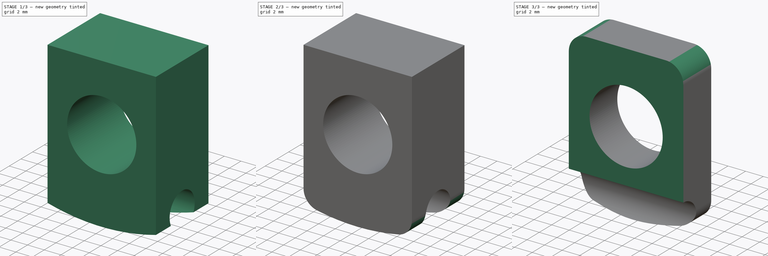
[diagram: build sequence overview — one tinted view per stage of 3, left to right]
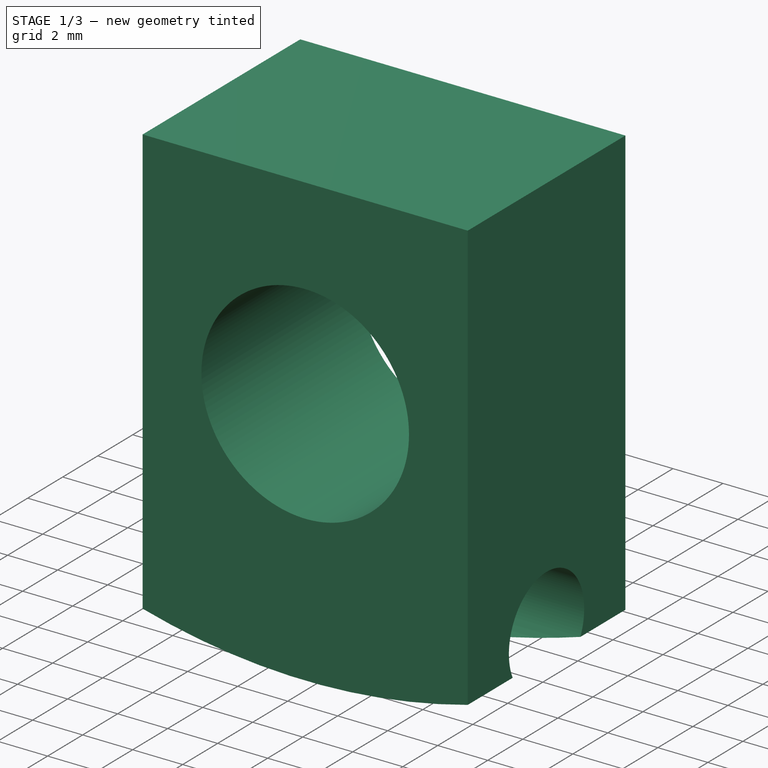
[diagram: stage 1 of 3 — iso view after this stage's code; geometry added in this stage tinted green]
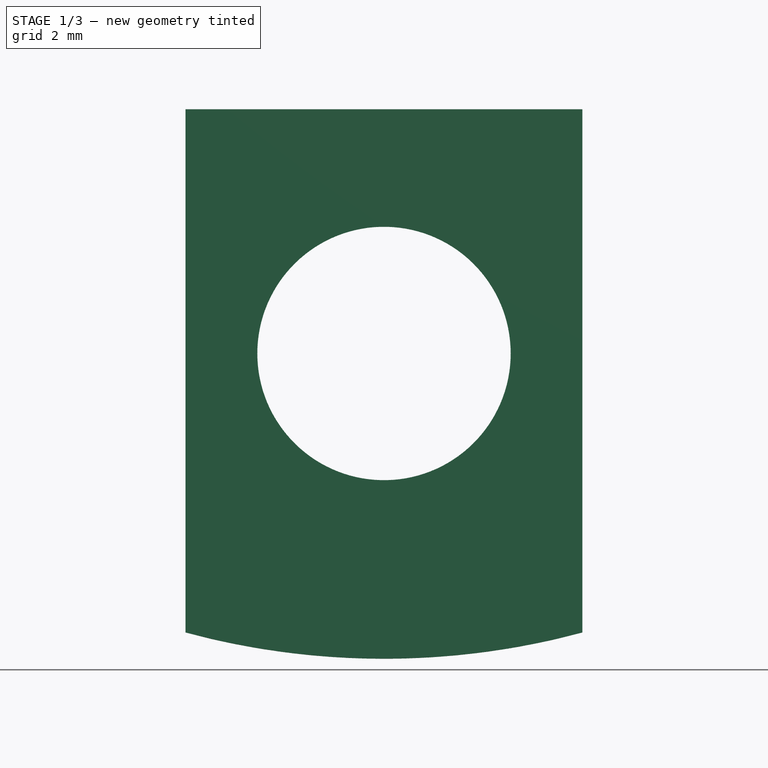
[diagram: stage 1 of 3 — front view after this stage's code; geometry added in this stage tinted green]
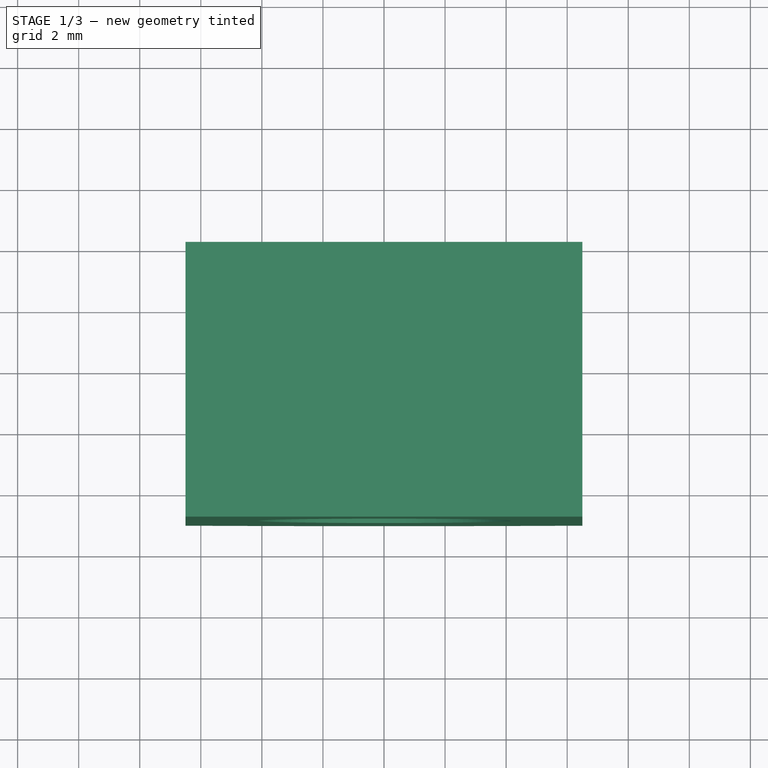
[diagram: stage 1 of 3 — top view after this stage's code; geometry added in this stage tinted green]
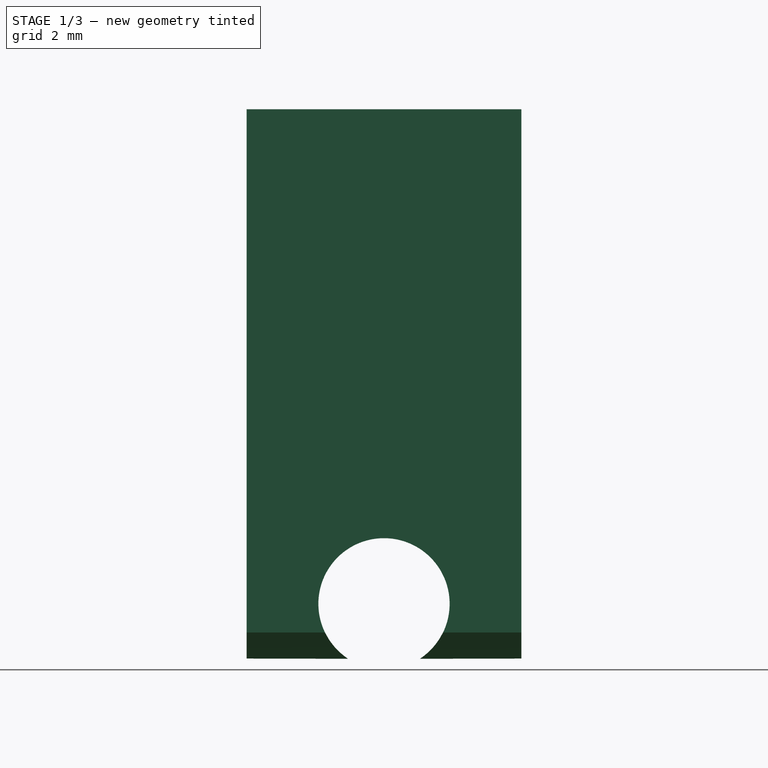
[diagram: stage 1 of 3 — right view after this stage's code; geometry added in this stage tinted green]
FCSTD DOCUMENT  (FreeCAD 0.20R24992 (Git))
Label: joint-2
License: All rights reserved
LicenseURL: http://en.wikipedia.org/wiki/All_rights_reserved
objects: Sketcher::SketchObject×3, PartDesign::Pocket×2, PartDesign::Fillet×2, PartDesign::Pad×1, PartDesign::Body×1
note: 14 computed .brp shape members not serialized (recipe doc carries the construction recipe); baked Part::Feature solids carry a one-line shape summary decoded from their .brp

FEATURE [Sketcher::SketchObject] Sketch
  FullyConstrained = true
  MapMode = 5
  Placement = pos=(0,0,0) rot=(1,0,0;1.5708rad)
  Support = -> [XZ_Plane]
  sketch-geometry (5):
    g0: Circle CenterX=0 CenterY=10 CenterZ=0 NormalX=0 NormalY=0 NormalZ=1 AngleXU=0 Radius=4.15
    g1: LineSegment StartX=-6.5 StartY=18 StartZ=0 EndX=-6.5 EndY=0.859785 EndZ=0
    g2: LineSegment StartX=6.5 StartY=18 StartZ=0 EndX=6.5 EndY=0.859785 EndZ=0
    g3: ArcOfCircle CenterX=0 CenterY=25 CenterZ=0 NormalX=0 NormalY=0 NormalZ=1 AngleXU=0 Radius=25 StartAngle=4.44937 EndAngle=4.97541
    g4: LineSegment StartX=-6.5 StartY=18 StartZ=0 EndX=6.5 EndY=18 EndZ=0
  constraints (16):
    c: PointOnObject(g0,g-2)
    c: Radius(g0) = 4.15
    c: Coincident(g3,g2)
    c: Coincident(g3,g1)
    c: PointOnObject(g-1,g3)
    c: DistanceY(g-1,g0) = 10
    c: Vertical(g2)
    c: Vertical(g1)
    c: Equal(g1,g2)
    c: Radius(g3) = 25
    c: Coincident(g4,g1)
    c: Coincident(g4,g2)
    c: Horizontal(g4)
    c: DistanceY(g0,g2) = 8
    c: DistanceX(g1,g2) = 13
    c: PointOnObject(g3,g-2)
FEATURE [PartDesign::Pad] Pad
  Direction = (0,-1,-2e-16)
  Length = 9
  Length2 = 100
  Placement = pos=(0,0,0) rot=(1,0,0;1.5708rad)
  Profile = -> Sketch
  Type = 0
FEATURE [Sketcher::SketchObject] Sketch001
  FullyConstrained = true
  MapMode = 5
  Placement = pos=(0,0,0) rot=(0.57735,0.57735,0.57735;2.0944rad)
  Support = -> [YZ_Plane]
  sketch-geometry (4):
    g0: ArcOfCircle CenterX=-4.5 CenterY=1.8 CenterZ=0 NormalX=0 NormalY=0 NormalZ=1 AngleXU=0 Radius=2.15 StartAngle=5.19615 EndAngle=10.5118
    g1: LineSegment StartX=-5.5 StartY=-0.103287 StartZ=0 EndX=-5.5 EndY=-1 EndZ=0
    g2: LineSegment StartX=-3.5 StartY=-0.103287 StartZ=0 EndX=-3.5 EndY=-1 EndZ=0
    g3: LineSegment StartX=-5.5 StartY=-1 StartZ=0 EndX=-3.5 EndY=-1 EndZ=0
  constraints (13):
    c: DistanceX(g0,g-1) = 4.5
    c: DistanceY(g-1,g0) = 1.8
    c: Vertical(g1)
    c: Vertical(g2)
    c: Radius(g0) = 2.15
    c: DistanceX(g1,g0) = 1
    c: Coincident(g3,g1)
    c: Coincident(g3,g2)
    c: Horizontal(g3)
    c: DistanceX(g0,g2) = 1
    c: DistanceY(g2,g-1) = 1
    c: Coincident(g0,g1)
    c: Coincident(g0,g2)
FEATURE [PartDesign::Pocket] Pocket
  BaseFeature = -> Pad
  Length = 5
  Length2 = 100
  Midplane = true
  Placement = pos=(0,0,0) rot=(1,0,0;1.5708rad)
  Profile = -> Sketch001
  Type = 1
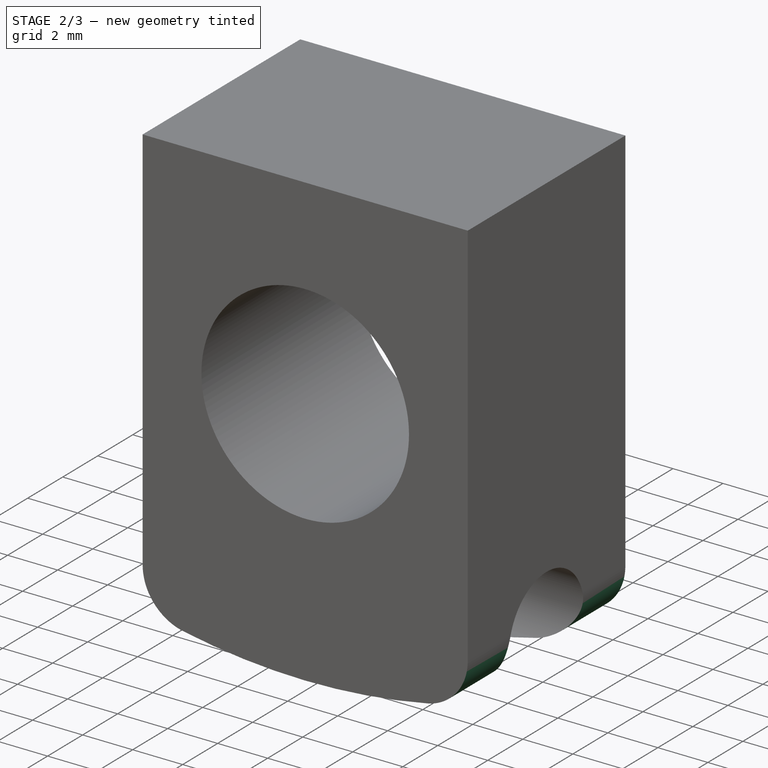
[diagram: stage 2 of 3 — iso view after this stage's code; geometry added in this stage tinted green]
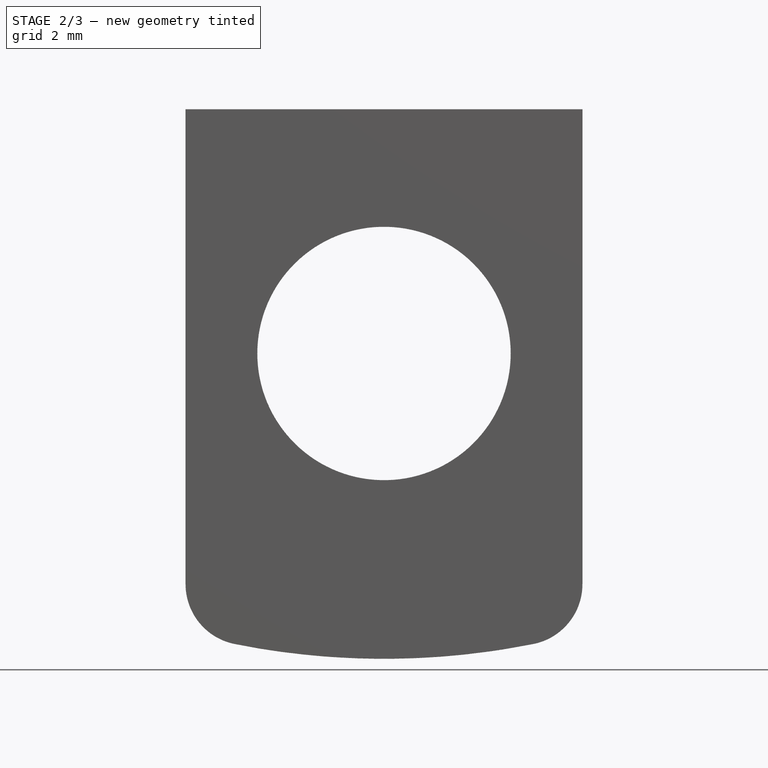
[diagram: stage 2 of 3 — front view after this stage's code; geometry added in this stage tinted green]
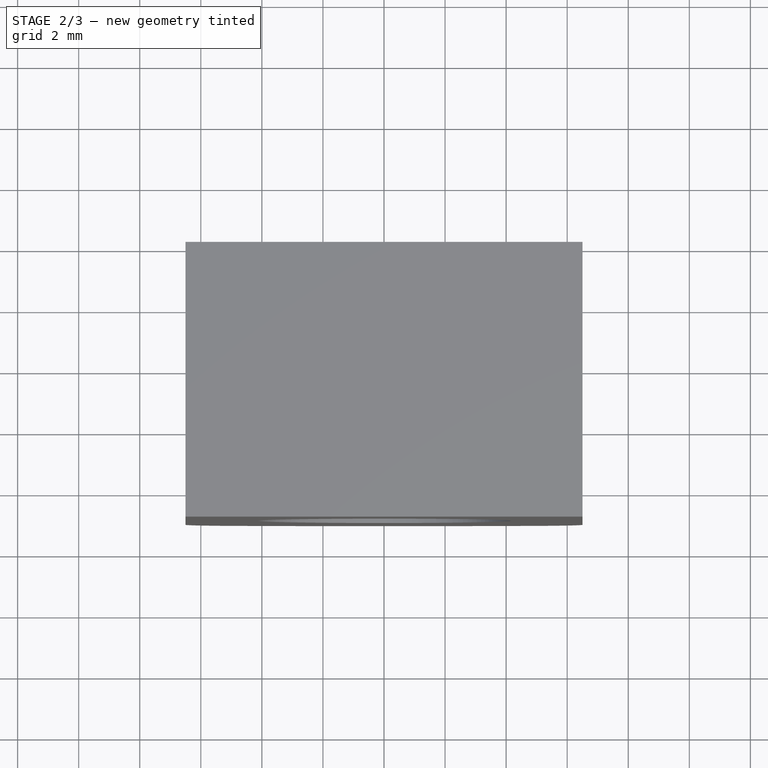
[diagram: stage 2 of 3 — top view after this stage's code; geometry added in this stage tinted green]
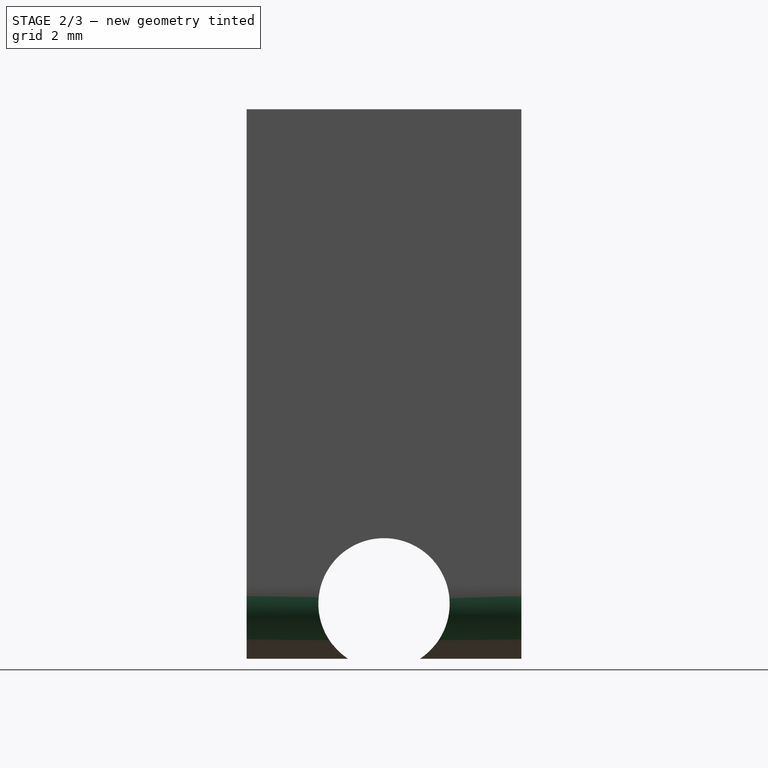
[diagram: stage 2 of 3 — right view after this stage's code; geometry added in this stage tinted green]
FEATURE [PartDesign::Fillet] Fillet
  Base = -> Pocket [Edge4,Edge2,Edge15,Edge11]
  BaseFeature = -> Pocket
  Placement = pos=(0,0,0) rot=(1,0,0;1.5708rad)
  Radius = 2
  SupportTransform = false
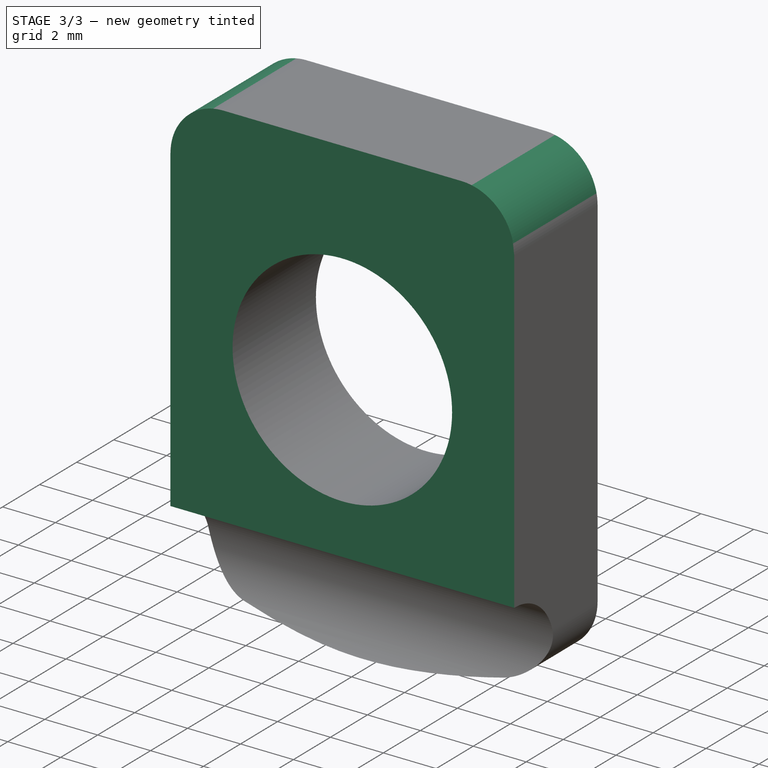
[diagram: stage 3 of 3 — iso view after this stage's code; geometry added in this stage tinted green]
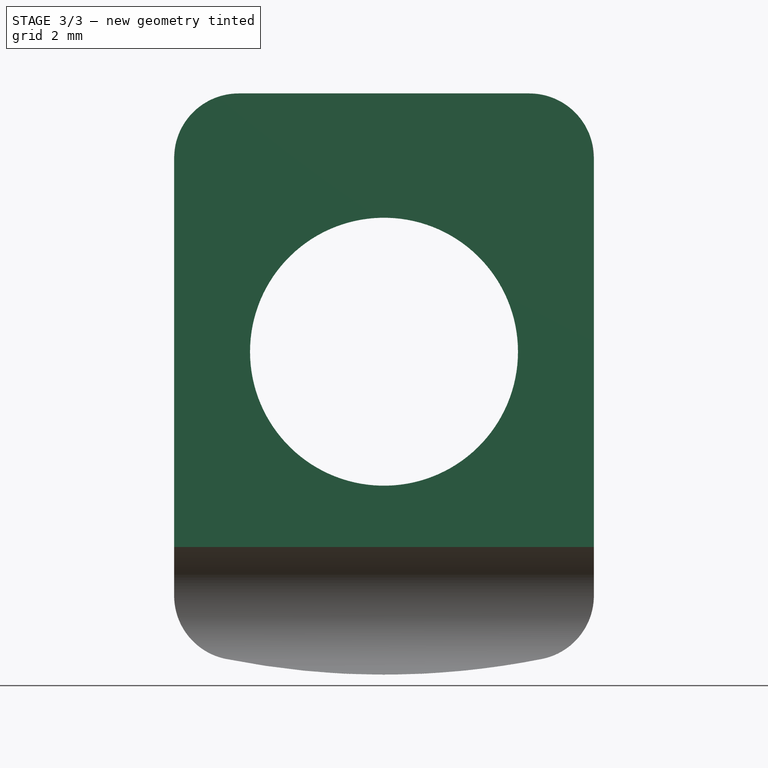
[diagram: stage 3 of 3 — front view after this stage's code; geometry added in this stage tinted green]
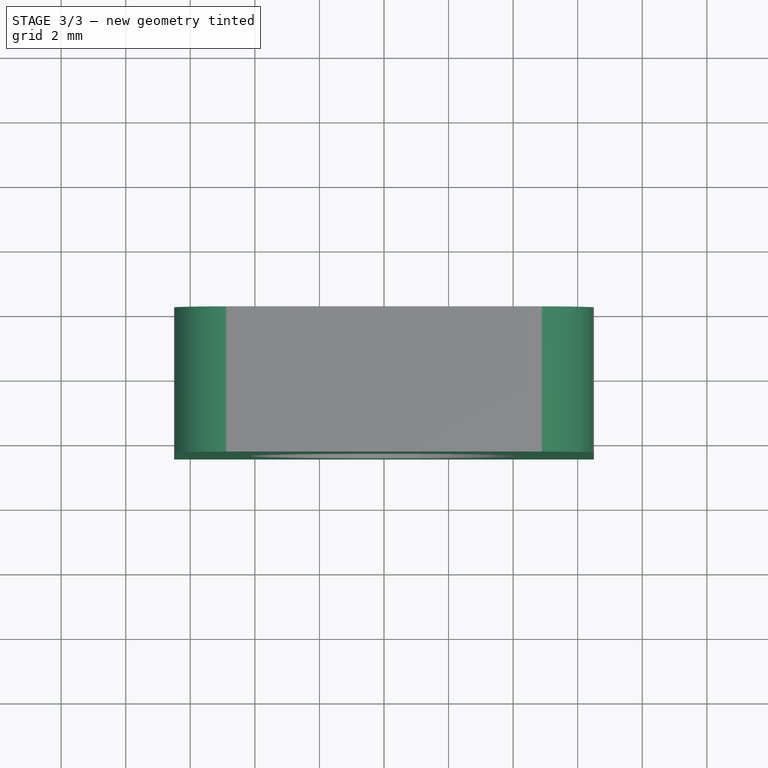
[diagram: stage 3 of 3 — top view after this stage's code; geometry added in this stage tinted green]
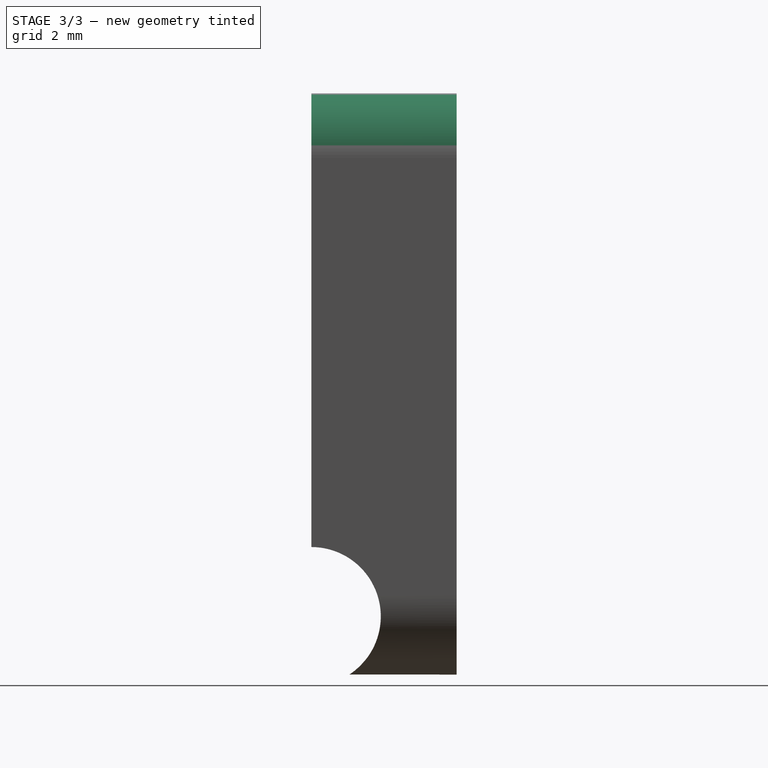
[diagram: stage 3 of 3 — right view after this stage's code; geometry added in this stage tinted green]
FEATURE [PartDesign::Fillet] Fillet001
  Base = -> Fillet [Edge15,Edge3]
  BaseFeature = -> Fillet
  Placement = pos=(0,0,0) rot=(1,0,0;1.5708rad)
  Radius = 2
  SupportTransform = false
FEATURE [Sketcher::SketchObject] Sketch002
  FullyConstrained = true
  MapMode = 5
  Placement = pos=(6.5,0,0) rot=(0.707107,0,0.707107;3.14159rad)
  Support = -> [Fillet001]
  sketch-geometry (4):
    g0: LineSegment StartX=18 StartY=9.5 StartZ=0 EndX=0 EndY=9.5 EndZ=0
    g1: LineSegment StartX=0 StartY=9.5 StartZ=0 EndX=0 EndY=4.5 EndZ=0
    g2: LineSegment StartX=0 StartY=4.5 StartZ=0 EndX=18 EndY=4.5 EndZ=0
    g3: LineSegment StartX=18 StartY=4.5 StartZ=0 EndX=18 EndY=9.5 EndZ=0
  constraints (12):
    c: Coincident(g0,g1)
    c: Coincident(g1,g2)
    c: Coincident(g2,g3)
    c: Coincident(g3,g0)
    c: Horizontal(g0)
    c: Horizontal(g2)
    c: Vertical(g1)
    c: Vertical(g3)
    c: DistanceY(g-1,g2) = 4.5
    c: PointOnObject(g0,g-2)
    c: DistanceX(g1,g2) = 18
    c: DistanceY(g2,g0) = 5
FEATURE [PartDesign::Pocket] Pocket001
  BaseFeature = -> Fillet001
  Length = 5
  Length2 = 100
  Placement = pos=(0,0,0) rot=(1,0,0;1.5708rad)
  Profile = -> Sketch002
  Type = 1
FEATURE [PartDesign::Body] Body
  Group = -> [Sketch,Pad,Sketch001,Pocket,Fillet,Fillet001,Sketch002,Pocket001]
  Origin = -> Origin
  Tip = -> Pocket001
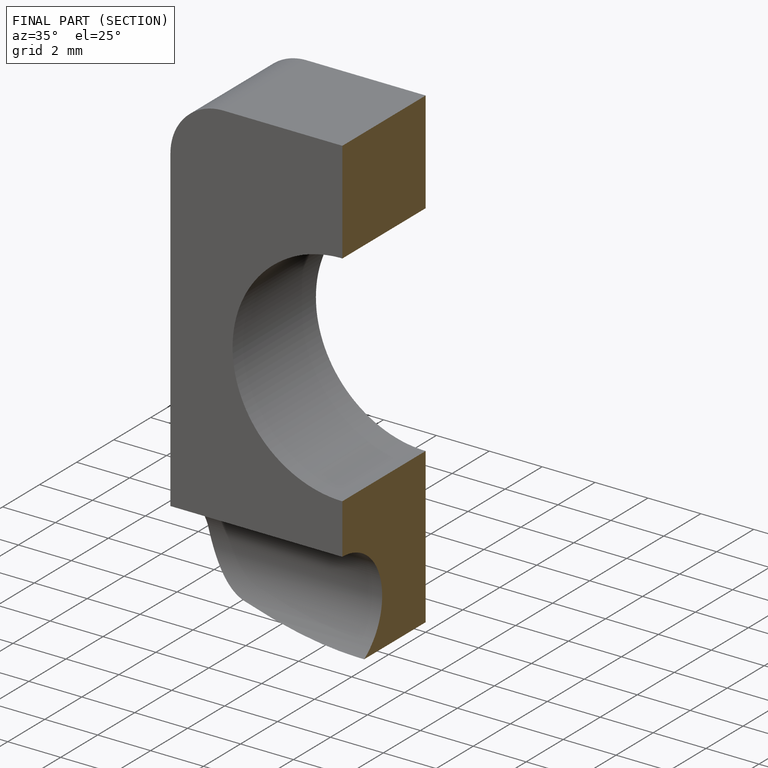
[diagram: finished part — half-section view (interior)]
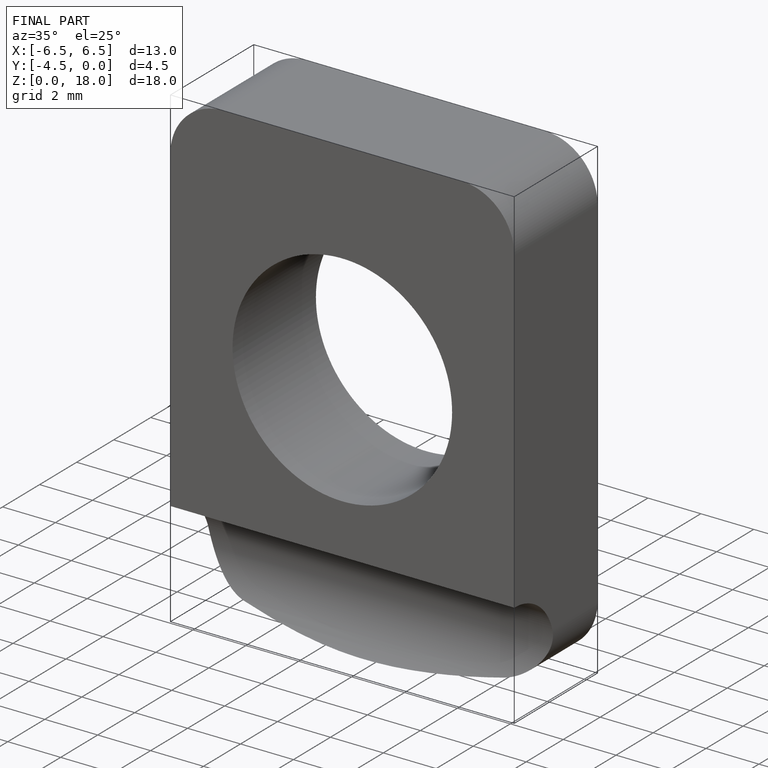
[diagram: finished part — iso view with bounding-box wireframe]
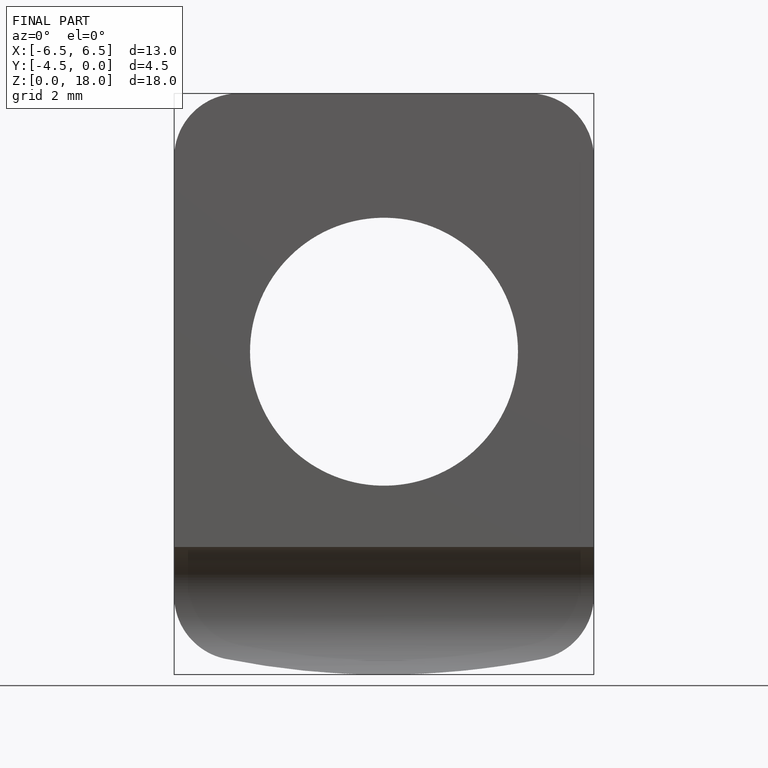
[diagram: finished part — front view with bounding-box wireframe]
